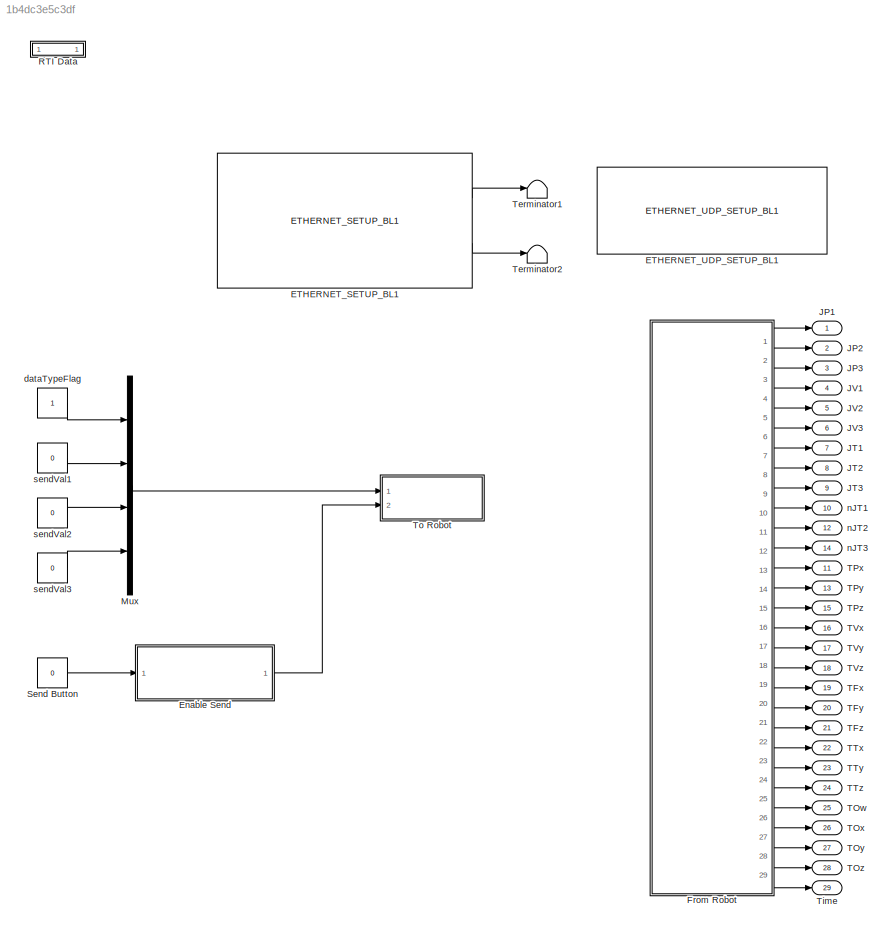
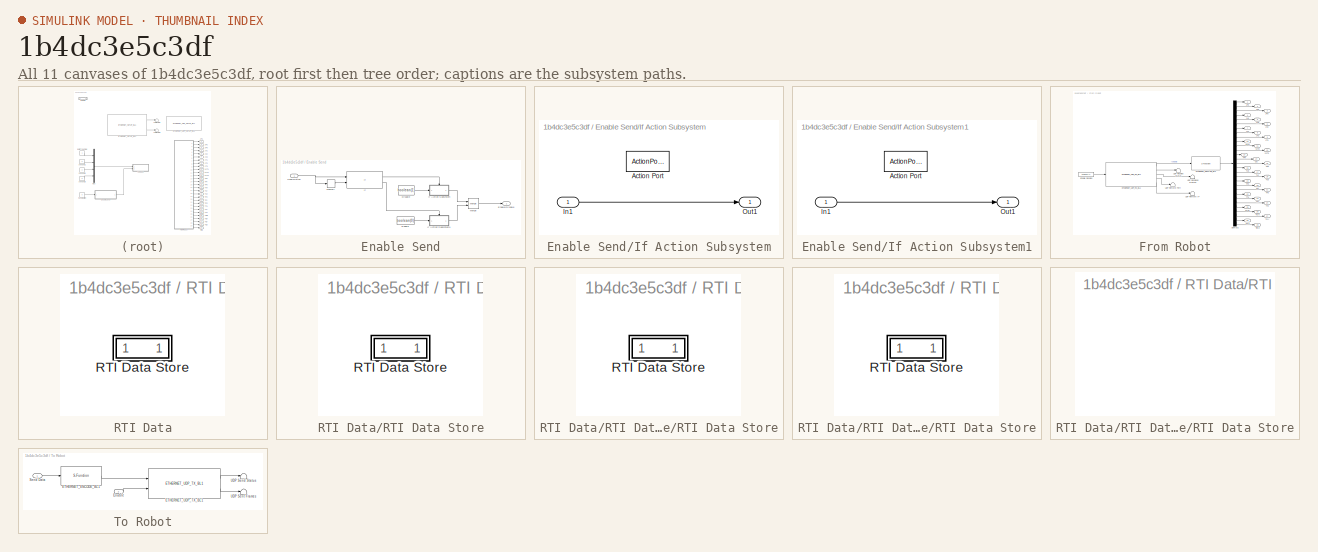
[diagram: thumbnail index - all 11 canvases of the model, root first then tree order]
MODEL slx_1b4dc3e5c3df
KIND model
CONFIG AbsTol = auto
CONFIG EnableMultiTasking = off
CONFIG FixedStep = 0.001
CONFIG MaxStep = auto
CONFIG MinStep = auto
CONFIG PostLoadFcn = , if any(exist('dsrtsu_mdlpostloadfcn', 'file') == [2, 3, 6]), try dsrtsu_mdlpostloadfcn('Execute', bdroot); catch fprintf('Error in PostLoadFcn (dsrtsu_mdlpostloadfcn) for model "%s":\n %s\n', bdroot, lasterr); end, end, \n
CONFIG RelTol = 1e-3
CONFIG SampleTimeConstraint = Unconstrained
CONFIG Solver = ode1
CONFIG SolverName = ode1
CONFIG StartTime = 0.0
CONFIG StopTime = Inf
BLOCK [Reference] ETHERNET_SETUP_BL1  REF=rtiethernetlib/ETHERNET_SETUP_BL1
  Ports = [0, 2]
  SourceBlock = rtiethernetlib/ETHERNET_SETUP_BL1
  SourceType = RTI
BLOCK [Reference] ETHERNET_UDP_SETUP_BL1  REF=rtiethernetlib/ETHERNET_UDP_SETUP_BL1
  Ports = []
  SourceBlock = rtiethernetlib/ETHERNET_UDP_SETUP_BL1
  SourceType = RTI
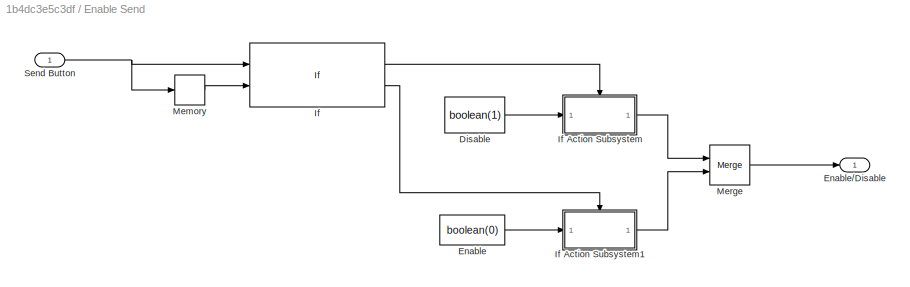
BLOCK [SubSystem] Enable Send
  Ports = [1, 1]
  RequestExecContextInheritance = off
  Variant = off
BLOCK [Constant] Enable Send/Disable
  Value = boolean(1)
BLOCK [Constant] Enable Send/Enable
  Value = boolean(0)
BLOCK [Outport] Enable Send/Enable//Disable
  IconDisplay = Port number
BLOCK [If] Enable Send/If
  IfExpression = u1 > u2
  NumInputs = 2
  Ports = [2, 2]
BLOCK [SubSystem] Enable Send/If Action Subsystem
  Ports = [1, 1, 0, 0, 0, 0, 0, 1]
  RequestExecContextInheritance = off
  TreatAsAtomicUnit = on
  Variant = off
BLOCK [ActionPort] Enable Send/If Action Subsystem/Action Port
  ActionType = then
BLOCK [Inport] Enable Send/If Action Subsystem/In1
  IconDisplay = Port number
BLOCK [Outport] Enable Send/If Action Subsystem/Out1
  IconDisplay = Port number
BLOCK [SubSystem] Enable Send/If Action Subsystem1
  Ports = [1, 1, 0, 0, 0, 0, 0, 1]
  RequestExecContextInheritance = off
  TreatAsAtomicUnit = on
  Variant = off
BLOCK [ActionPort] Enable Send/If Action Subsystem1/Action Port
  ActionType = else
BLOCK [Inport] Enable Send/If Action Subsystem1/In1
  IconDisplay = Port number
BLOCK [Outport] Enable Send/If Action Subsystem1/Out1
  IconDisplay = Port number
BLOCK [Memory] Enable Send/Memory
BLOCK [Merge] Enable Send/Merge
  Ports = [2, 1]
BLOCK [Inport] Enable Send/Send Button
  IconDisplay = Port number
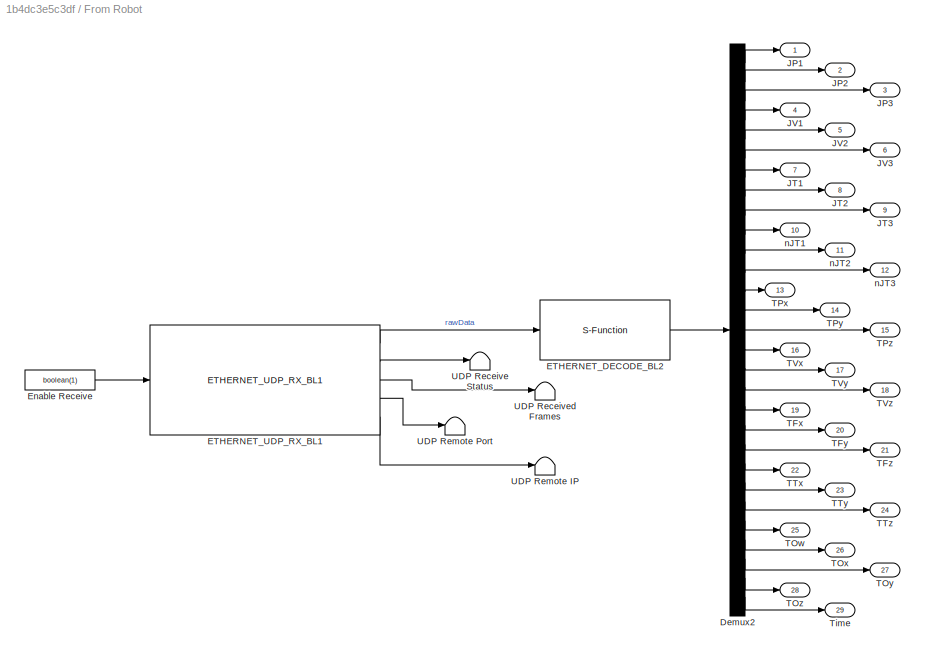
BLOCK [SubSystem] From Robot
  Ports = [0, 29]
  RequestExecContextInheritance = off
  Variant = off
BLOCK [Demux] From Robot/Demux2
  DisplayOption = bar
  Outputs = 29
  Ports = [1, 29]
BLOCK [S-Function] From Robot/ETHERNET_DECODE_BL2
  EnableBusSupport = off
  FunctionName = rtiethernetdecode
  Parameters = byteordering,offset,auto_offset,datatype,one_datatype,sampletime
  Ports = [1, 1]
  SFcnIsStateOwnerBlock = off
  SFunctionDeploymentMode = off
BLOCK [Reference] From Robot/ETHERNET_UDP_RX_BL1  REF=rtiethernetlib/ETHERNET_UDP_RX_BL1
  Ports = [1, 5]
  SourceBlock = rtiethernetlib/ETHERNET_UDP_RX_BL1
  SourceType = RTI
BLOCK [Constant] From Robot/Enable Receive
  Value = boolean(1)
BLOCK [Outport] From Robot/JP1
  IconDisplay = Port number
BLOCK [Outport] From Robot/JP2
  IconDisplay = Port number
  Port = 2
BLOCK [Outport] From Robot/JP3
  IconDisplay = Port number
  Port = 3
BLOCK [Outport] From Robot/JT1
  IconDisplay = Port number
  Port = 7
BLOCK [Outport] From Robot/JT2
  IconDisplay = Port number
  Port = 8
BLOCK [Outport] From Robot/JT3
  IconDisplay = Port number
  Port = 9
BLOCK [Outport] From Robot/JV1
  IconDisplay = Port number
  Port = 4
BLOCK [Outport] From Robot/JV2
  IconDisplay = Port number
  Port = 5
BLOCK [Outport] From Robot/JV3
  IconDisplay = Port number
  Port = 6
BLOCK [Outport] From Robot/TFx
  IconDisplay = Port number
  Port = 19
BLOCK [Outport] From Robot/TFy
  IconDisplay = Port number
  Port = 20
BLOCK [Outport] From Robot/TFz
  IconDisplay = Port number
  Port = 21
BLOCK [Outport] From Robot/TOw
  IconDisplay = Port number
  Port = 25
BLOCK [Outport] From Robot/TOx
  IconDisplay = Port number
  Port = 26
BLOCK [Outport] From Robot/TOy
  IconDisplay = Port number
  Port = 27
BLOCK [Outport] From Robot/TOz
  IconDisplay = Port number
  Port = 28
BLOCK [Outport] From Robot/TPx
  IconDisplay = Port number
  Port = 13
BLOCK [Outport] From Robot/TPy
  IconDisplay = Port number
  Port = 14
BLOCK [Outport] From Robot/TPz
  IconDisplay = Port number
  Port = 15
BLOCK [Outport] From Robot/TTx
  IconDisplay = Port number
  Port = 22
BLOCK [Outport] From Robot/TTy
  IconDisplay = Port number
  Port = 23
BLOCK [Outport] From Robot/TTz
  IconDisplay = Port number
  Port = 24
BLOCK [Outport] From Robot/TVx
  IconDisplay = Port number
  Port = 16
BLOCK [Outport] From Robot/TVy
  IconDisplay = Port number
  Port = 17
BLOCK [Outport] From Robot/TVz
  IconDisplay = Port number
  Port = 18
BLOCK [Outport] From Robot/Time
  IconDisplay = Port number
  Port = 29
BLOCK [Terminator] From Robot/UDP Receive Status
BLOCK [Terminator] From Robot/UDP Received Frames
BLOCK [Terminator] From Robot/UDP Remote IP
BLOCK [Terminator] From Robot/UDP Remote Port
BLOCK [Outport] From Robot/nJT1
  IconDisplay = Port number
  Port = 10
BLOCK [Outport] From Robot/nJT2
  IconDisplay = Port number
  Port = 11
BLOCK [Outport] From Robot/nJT3
  IconDisplay = Port number
  Port = 12
BLOCK [Outport] JP1
  IconDisplay = Port number
BLOCK [Outport] JP2
  IconDisplay = Port number
  Port = 2
BLOCK [Outport] JP3
  IconDisplay = Port number
  Port = 3
BLOCK [Outport] JT1
  IconDisplay = Port number
  Port = 7
BLOCK [Outport] JT2
  IconDisplay = Port number
  Port = 8
BLOCK [Outport] JT3
  IconDisplay = Port number
  Port = 9
BLOCK [Outport] JV1
  IconDisplay = Port number
  Port = 4
BLOCK [Outport] JV2
  IconDisplay = Port number
  Port = 5
BLOCK [Outport] JV3
  IconDisplay = Port number
  Port = 6
BLOCK [Mux] Mux
  DisplayOption = bar
  Ports = [4, 1]
BLOCK [SubSystem] RTI Data
  CopyFcn = if exist('rtidc'), try,  rtidc('DataHostBlockClbCopy', gcbh); catch, disp(['Warning: ''CopyFcn'' for RTI Data block failed: ' lasterr]); end, end,
  DeleteFcn = if exist('rtidc'), try,  rtidc('DataHostBlockClbDelete', gcbh); catch, disp(['Warning: ''DeleteFcn'' for RTI Data block failed: ' lasterr]); end, end,
  LoadFcn = if exist('rtidc'), try,  rtidc('DataHostBlockClbLoad', gcbh); catch, disp(['Warning: ''LoadFcn'' for RTI Data block failed: ' lasterr]); end, end,
  ModelCloseFcn = if exist('rtidc'), try,  rtidc('DataHostBlockClbModelClose', gcbh); catch, disp(['Warning: ''ModelCloseFcn'' for RTI Data block failed: ' lasterr]); end, end,
  NameChangeFcn = if exist('rtidc'), try,  rtidc('DataHostBlockClbNameChange', gcbh); catch, disp(['Warning: ''NameChangeFcn'' for RTI Data block failed: ' lasterr]); end, end,
  Ports = []
  PostSaveFcn = if exist('rtidc'), try,  rtidc('DataHostBlockClbPostSave', gcbh); catch, disp(['Warning: ''PostSaveFcn'' for RTI Data block failed: ' lasterr]); end, end,
  PreSaveFcn = if exist('rtidc'), try,  rtidc('DataHostBlockClbPreSave', gcbh); catch, disp(['Warning: ''PreSaveFcn'' for RTI Data block failed: ' lasterr]); end, end,
  RequestExecContextInheritance = off
  Tag = struct('RTIDataServer',struct('RTIDataServerVs','2','RTIModelDescription','struct(''main'',''Robot_Control'',''sub'','''',''isMp'',0)'))
  Variant = off
BLOCK [SubSystem] RTI Data/RTI Data Store
  Ports = []
  RequestExecContextInheritance = off
  Tag = struct('private',struct('version',struct('dsVer',uint32(2),'dsVerCreation',uint32(2),'RTI',struct('ver','7.7','type','RTI1202')),'access',struct('type','Model','isPerm',1,'created',['23-Jan-2020 11:28:27'],'modified',['23-Jan-2020 11:47:49'],'location','')),'public',struct('main',struct('data',[]),'sub',struct('name',{{'Robot_Control'}},'data',{{struct('TH',struct('thTaskInfo',struct('taskType',{'...<+890ch>
  Variant = off
BLOCK [SubSystem] RTI Data/RTI Data Store/RTI Data Store
  Ports = []
  RequestExecContextInheritance = off
  Variant = off
BLOCK [SubSystem] RTI Data/RTI Data Store/RTI Data Store/RTI Data Store
  Ports = []
  RequestExecContextInheritance = off
  Variant = off
BLOCK [SubSystem] RTI Data/RTI Data Store/RTI Data Store/RTI Data Store/RTI Data Store
  Ports = []
  RequestExecContextInheritance = off
  Variant = off
BLOCK [Constant] Send Button
  Value = 0
BLOCK [Outport] TFx
  IconDisplay = Port number
  Port = 19
BLOCK [Outport] TFy
  IconDisplay = Port number
  Port = 20
BLOCK [Outport] TFz
  IconDisplay = Port number
  Port = 21
BLOCK [Outport] TOw
  IconDisplay = Port number
  Port = 25
BLOCK [Outport] TOx
  IconDisplay = Port number
  Port = 26
BLOCK [Outport] TOy
  IconDisplay = Port number
  Port = 27
BLOCK [Outport] TOz
  IconDisplay = Port number
  Port = 28
BLOCK [Outport] TPx
  IconDisplay = Port number
  Port = 11
BLOCK [Outport] TPy
  IconDisplay = Port number
  Port = 13
BLOCK [Outport] TPz
  IconDisplay = Port number
  Port = 15
BLOCK [Outport] TTx
  IconDisplay = Port number
  Port = 22
BLOCK [Outport] TTy
  IconDisplay = Port number
  Port = 23
BLOCK [Outport] TTz
  IconDisplay = Port number
  Port = 24
BLOCK [Outport] TVx
  IconDisplay = Port number
  Port = 16
BLOCK [Outport] TVy
  IconDisplay = Port number
  Port = 17
BLOCK [Outport] TVz
  IconDisplay = Port number
  Port = 18
BLOCK [Terminator] Terminator1
BLOCK [Terminator] Terminator2
BLOCK [Outport] Time
  IconDisplay = Port number
  Port = 29
BLOCK [SubSystem] To Robot
  Ports = [2]
  RequestExecContextInheritance = off
  Variant = off
BLOCK [S-Function] To Robot/ETHERNET_ENCODE_BL1
  EnableBusSupport = off
  FunctionName = rtiethernetencode
  Parameters = byteordering,offset,auto_offset,datatype,one_datatype,sampletime
  Ports = [1, 1]
  SFcnIsStateOwnerBlock = off
  SFunctionDeploymentMode = off
BLOCK [Reference] To Robot/ETHERNET_UDP_TX_BL1  REF=rtiethernetlib/ETHERNET_UDP_TX_BL1
  Ports = [2, 2]
  SourceBlock = rtiethernetlib/ETHERNET_UDP_TX_BL1
  SourceType = RTI
BLOCK [Inport] To Robot/Enable
  IconDisplay = Port number
  Port = 2
BLOCK [Inport] To Robot/Send Data
  IconDisplay = Port number
BLOCK [Terminator] To Robot/UDP Send Status
BLOCK [Terminator] To Robot/UDP Sent Frames
BLOCK [Constant] dataTypeFlag
  Description = This block determines the data type that the robot controller receives. \nIf the controller expects a data type different than what you send, it will beep and throw an error.\nData Types:\n1 - Joint Position\n2 - Joint Velocity\n3 - Joint Torque (gravity compensated)\n4 - Joint Torque (not gravity compensated)\n5 - Tool Position\n6 - Tool Velocity
BLOCK [Outport] nJT1
  IconDisplay = Port number
  Port = 10
BLOCK [Outport] nJT2
  IconDisplay = Port number
  Port = 12
BLOCK [Outport] nJT3
  IconDisplay = Port number
  Port = 14
BLOCK [Constant] sendVal1
  Value = 0
BLOCK [Constant] sendVal2
  Value = 0
BLOCK [Constant] sendVal3
  Value = 0
LINE ETHERNET_SETUP_BL1:1 -> Terminator1:1
LINE ETHERNET_SETUP_BL1:2 -> Terminator2:1
LINE Enable Send/Disable:1 -> Enable Send/If Action Subsystem:1
LINE Enable Send/Enable:1 -> Enable Send/If Action Subsystem1:1
LINE Enable Send/If Action Subsystem/In1:1 -> Enable Send/If Action Subsystem/Out1:1
LINE Enable Send/If Action Subsystem1/In1:1 -> Enable Send/If Action Subsystem1/Out1:1
LINE Enable Send/If Action Subsystem1:1 -> Enable Send/Merge:2
LINE Enable Send/If Action Subsystem:1 -> Enable Send/Merge:1
LINE Enable Send/If:1 -> Enable Send/If Action Subsystem:ifaction
LINE Enable Send/If:2 -> Enable Send/If Action Subsystem1:ifaction
LINE Enable Send/Memory:1 -> Enable Send/If:2
LINE Enable Send/Merge:1 -> Enable Send/Enable//Disable:1
NET Enable Send/Send Button:1 -> Enable Send/If:1, Enable Send/Memory:1
LINE Enable Send:1 -> To Robot:2
LINE From Robot/Demux2:1 -> From Robot/JP1:1
LINE From Robot/Demux2:10 -> From Robot/nJT1:1
LINE From Robot/Demux2:11 -> From Robot/nJT2:1
LINE From Robot/Demux2:12 -> From Robot/nJT3:1
LINE From Robot/Demux2:13 -> From Robot/TPx:1
LINE From Robot/Demux2:14 -> From Robot/TPy:1
LINE From Robot/Demux2:15 -> From Robot/TPz:1
LINE From Robot/Demux2:16 -> From Robot/TVx:1
LINE From Robot/Demux2:17 -> From Robot/TVy:1
LINE From Robot/Demux2:18 -> From Robot/TVz:1
LINE From Robot/Demux2:19 -> From Robot/TFx:1
LINE From Robot/Demux2:2 -> From Robot/JP2:1
LINE From Robot/Demux2:20 -> From Robot/TFy:1
LINE From Robot/Demux2:21 -> From Robot/TFz:1
LINE From Robot/Demux2:22 -> From Robot/TTx:1
LINE From Robot/Demux2:23 -> From Robot/TTy:1
LINE From Robot/Demux2:24 -> From Robot/TTz:1
LINE From Robot/Demux2:25 -> From Robot/TOw:1
LINE From Robot/Demux2:26 -> From Robot/TOx:1
LINE From Robot/Demux2:27 -> From Robot/TOy:1
LINE From Robot/Demux2:28 -> From Robot/TOz:1
LINE From Robot/Demux2:29 -> From Robot/Time:1
LINE From Robot/Demux2:3 -> From Robot/JP3:1
LINE From Robot/Demux2:4 -> From Robot/JV1:1
LINE From Robot/Demux2:5 -> From Robot/JV2:1
LINE From Robot/Demux2:6 -> From Robot/JV3:1
LINE From Robot/Demux2:7 -> From Robot/JT1:1
LINE From Robot/Demux2:8 -> From Robot/JT2:1
LINE From Robot/Demux2:9 -> From Robot/JT3:1
LINE From Robot/ETHERNET_DECODE_BL2:1 -> From Robot/Demux2:1
LINE From Robot/ETHERNET_UDP_RX_BL1:1 -> From Robot/ETHERNET_DECODE_BL2:1
LINE From Robot/ETHERNET_UDP_RX_BL1:2 -> From Robot/UDP Receive Status:1
LINE From Robot/ETHERNET_UDP_RX_BL1:3 -> From Robot/UDP Received Frames:1
LINE From Robot/ETHERNET_UDP_RX_BL1:4 -> From Robot/UDP Remote Port:1
LINE From Robot/ETHERNET_UDP_RX_BL1:5 -> From Robot/UDP Remote IP:1
LINE From Robot/Enable Receive:1 -> From Robot/ETHERNET_UDP_RX_BL1:1
LINE From Robot:1 -> JP1:1
LINE From Robot:10 -> nJT1:1
LINE From Robot:11 -> nJT2:1
LINE From Robot:12 -> nJT3:1
LINE From Robot:13 -> TPx:1
LINE From Robot:14 -> TPy:1
LINE From Robot:15 -> TPz:1
LINE From Robot:16 -> TVx:1
LINE From Robot:17 -> TVy:1
LINE From Robot:18 -> TVz:1
LINE From Robot:19 -> TFx:1
LINE From Robot:2 -> JP2:1
LINE From Robot:20 -> TFy:1
LINE From Robot:21 -> TFz:1
LINE From Robot:22 -> TTx:1
LINE From Robot:23 -> TTy:1
LINE From Robot:24 -> TTz:1
LINE From Robot:25 -> TOw:1
LINE From Robot:26 -> TOx:1
LINE From Robot:27 -> TOy:1
LINE From Robot:28 -> TOz:1
LINE From Robot:29 -> Time:1
LINE From Robot:3 -> JP3:1
LINE From Robot:4 -> JV1:1
LINE From Robot:5 -> JV2:1
LINE From Robot:6 -> JV3:1
LINE From Robot:7 -> JT1:1
LINE From Robot:8 -> JT2:1
LINE From Robot:9 -> JT3:1
LINE Mux:1 -> To Robot:1
LINE Send Button:1 -> Enable Send:1
LINE To Robot/ETHERNET_ENCODE_BL1:1 -> To Robot/ETHERNET_UDP_TX_BL1:1
LINE To Robot/ETHERNET_UDP_TX_BL1:1 -> To Robot/UDP Send Status:1
LINE To Robot/ETHERNET_UDP_TX_BL1:2 -> To Robot/UDP Sent Frames:1
LINE To Robot/Enable:1 -> To Robot/ETHERNET_UDP_TX_BL1:2
LINE To Robot/Send Data:1 -> To Robot/ETHERNET_ENCODE_BL1:1
LINE dataTypeFlag:1 -> Mux:1
LINE sendVal1:1 -> Mux:2
LINE sendVal2:1 -> Mux:3
LINE sendVal3:1 -> Mux:4
note: NET lines group one-source signal fan-out (src -> all destinations, sorted); 1:1 wires keep LINE
